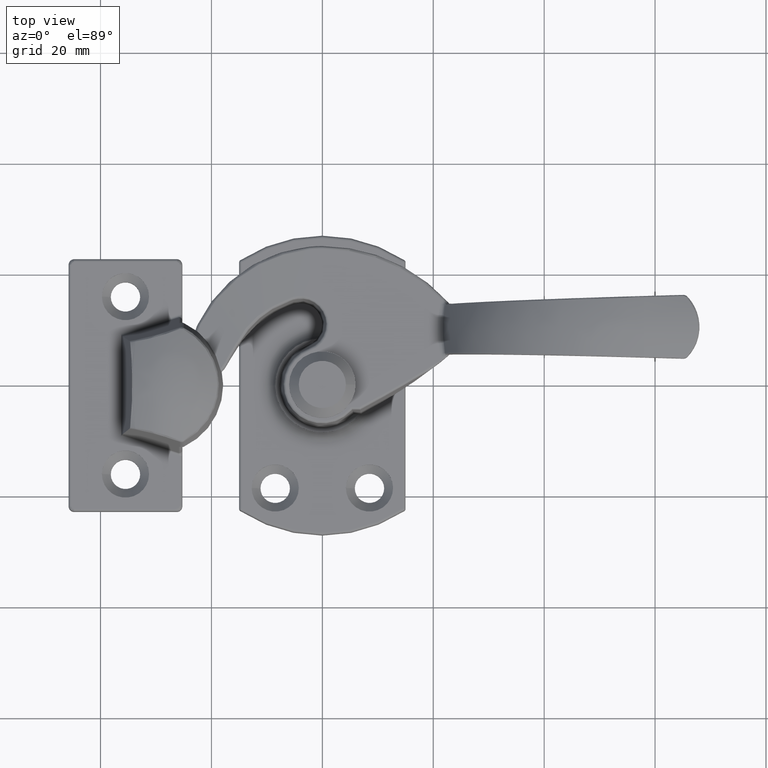
[diagram: clean part render]
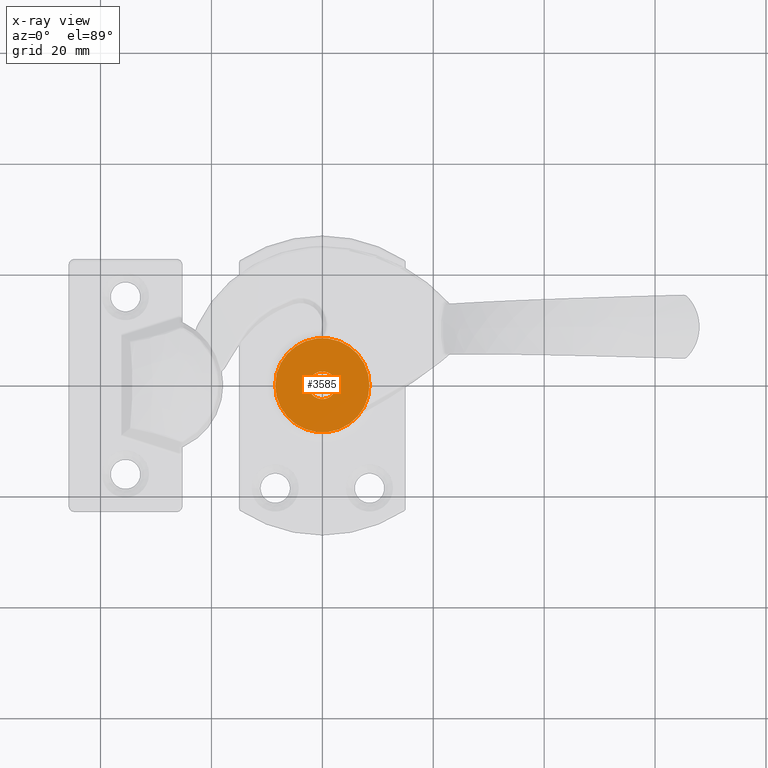
[diagram: x-ray — body ghosted, one internal face saturated and labeled with its STEP entity id]
A machine part, top view, then the same camera in x-ray: the body is ghosted and one INTERNAL B-rep face — a face not visible from any outside direction — is saturated and labeled: STEP entity #3585.
In plain terms, the highlighted planar face has unit normal (0, 0, 1).
Its self-contained STEP definition (entity closure, byte-faithful):
#256=FACE_BOUND('',#1154,.T.);
#309=PLANE('',#3915);
#900=FACE_OUTER_BOUND('',#1153,.T.);
#1153=EDGE_LOOP('',(#2717));
#1154=EDGE_LOOP('',(#2718));
#1450=CIRCLE('',#3914,8.5);
#1451=CIRCLE('',#3916,2.5);
#1696=VERTEX_POINT('',#5607);
#1697=VERTEX_POINT('',#5610);
#2089=EDGE_CURVE('',#1696,#1696,#1450,.T.);
#2090=EDGE_CURVE('',#1697,#1697,#1451,.T.);
#2717=ORIENTED_EDGE('',*,*,#2089,.T.);
#2718=ORIENTED_EDGE('',*,*,#2090,.F.);
#3585=ADVANCED_FACE('',(#900,#256),#309,.T.);
#3914=AXIS2_PLACEMENT_3D('',#5608,#4577,#4578);
#3915=AXIS2_PLACEMENT_3D('',#5609,#4579,#4580);
#3916=AXIS2_PLACEMENT_3D('',#5611,#4581,#4582);
#4577=DIRECTION('center_axis',(0.,0.,1.));
#4578=DIRECTION('ref_axis',(1.,0.,0.));
#4579=DIRECTION('center_axis',(0.,0.,1.));
#4580=DIRECTION('ref_axis',(1.,0.,0.));
#4581=DIRECTION('center_axis',(0.,0.,1.));
#4582=DIRECTION('ref_axis',(1.,0.,0.));
#5607=CARTESIAN_POINT('',(-8.5,-1.04094977927525E-15,6.));
#5608=CARTESIAN_POINT('Origin',(0.,0.,6.));
#5609=CARTESIAN_POINT('Origin',(5.5,0.,6.));
#5610=CARTESIAN_POINT('',(2.5,0.,6.));
#5611=CARTESIAN_POINT('Origin',(0.,0.,6.));